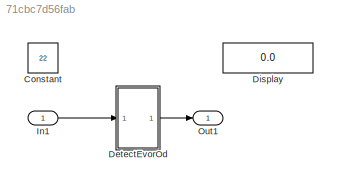
MODEL slx_71cbc7d56fab
KIND model
CONFIG AbsTol = auto
CONFIG EnableMultiTasking = off
CONFIG FixedStep = auto
CONFIG MaxStep = auto
CONFIG MinStep = auto
CONFIG RelTol = 1e-3
CONFIG SampleTimeConstraint = Unconstrained
CONFIG SolverName = FixedStepDiscrete
CONFIG StartTime = 0.0
CONFIG StopTime = 10.0
BLOCK [Constant] Constant
  Value = 22
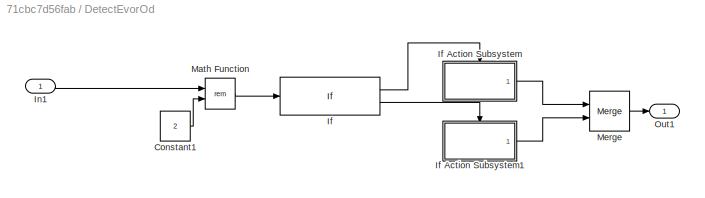
BLOCK [SubSystem] DetectEvorOd
  Ports = [1, 1]
  RTWFcnNameOpts = Use subsystem name
  RTWFileNameOpts = Use subsystem name
  RTWSystemCode = Reusable function
  RequestExecContextInheritance = off
  TreatAsAtomicUnit = on
BLOCK [Constant] DetectEvorOd/Constant1
  Value = 2
BLOCK [If] DetectEvorOd/If
  IfExpression = u1  == 0
  Ports = [1, 2]
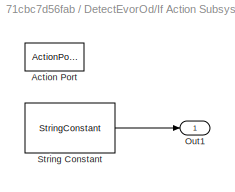
BLOCK [SubSystem] DetectEvorOd/If Action Subsystem
  Ports = [0, 1, 0, 0, 0, 0, 0, 1]
  RequestExecContextInheritance = off
  TreatAsAtomicUnit = on
BLOCK [ActionPort] DetectEvorOd/If Action Subsystem/Action Port
  ActionPortLabel = if(u1  == 0)
BLOCK [Outport] DetectEvorOd/If Action Subsystem/Out1
BLOCK [StringConstant] DetectEvorOd/If Action Subsystem/String Constant
  String = "Even"
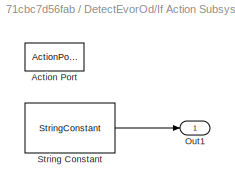
BLOCK [SubSystem] DetectEvorOd/If Action Subsystem1
  Ports = [0, 1, 0, 0, 0, 0, 0, 1]
  RequestExecContextInheritance = off
  TreatAsAtomicUnit = on
BLOCK [ActionPort] DetectEvorOd/If Action Subsystem1/Action Port
  ActionPortLabel = else
BLOCK [Outport] DetectEvorOd/If Action Subsystem1/Out1
BLOCK [StringConstant] DetectEvorOd/If Action Subsystem1/String Constant
  String = "Odd"
BLOCK [Inport] DetectEvorOd/In1
BLOCK [Math] DetectEvorOd/Math Function
  Operator = rem
  Ports = [2, 1]
BLOCK [Merge] DetectEvorOd/Merge
  Ports = [2, 1]
BLOCK [Outport] DetectEvorOd/Out1
BLOCK [Display] Display
  Decimation = 1
  Ports = [1]
BLOCK [Inport] In1
BLOCK [Outport] Out1
LINE DetectEvorOd/Constant1:1 -> DetectEvorOd/Math Function:2
LINE DetectEvorOd/If Action Subsystem/String Constant:1 -> DetectEvorOd/If Action Subsystem/Out1:1
LINE DetectEvorOd/If Action Subsystem1/String Constant:1 -> DetectEvorOd/If Action Subsystem1/Out1:1
LINE DetectEvorOd/If Action Subsystem1:1 -> DetectEvorOd/Merge:2
LINE DetectEvorOd/If Action Subsystem:1 -> DetectEvorOd/Merge:1
LINE DetectEvorOd/If:1 -> DetectEvorOd/If Action Subsystem:ifaction
LINE DetectEvorOd/If:2 -> DetectEvorOd/If Action Subsystem1:ifaction
LINE DetectEvorOd/In1:1 -> DetectEvorOd/Math Function:1
LINE DetectEvorOd/Math Function:1 -> DetectEvorOd/If:1
LINE DetectEvorOd/Merge:1 -> DetectEvorOd/Out1:1
LINE DetectEvorOd:1 -> Out1:1
LINE In1:1 -> DetectEvorOd:1
